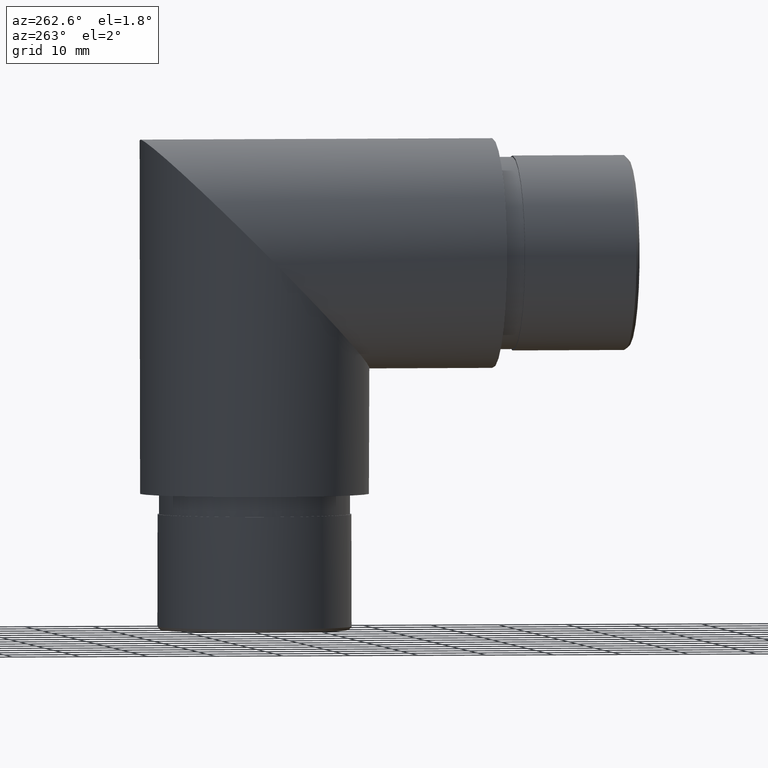
[diagram: clean part render]
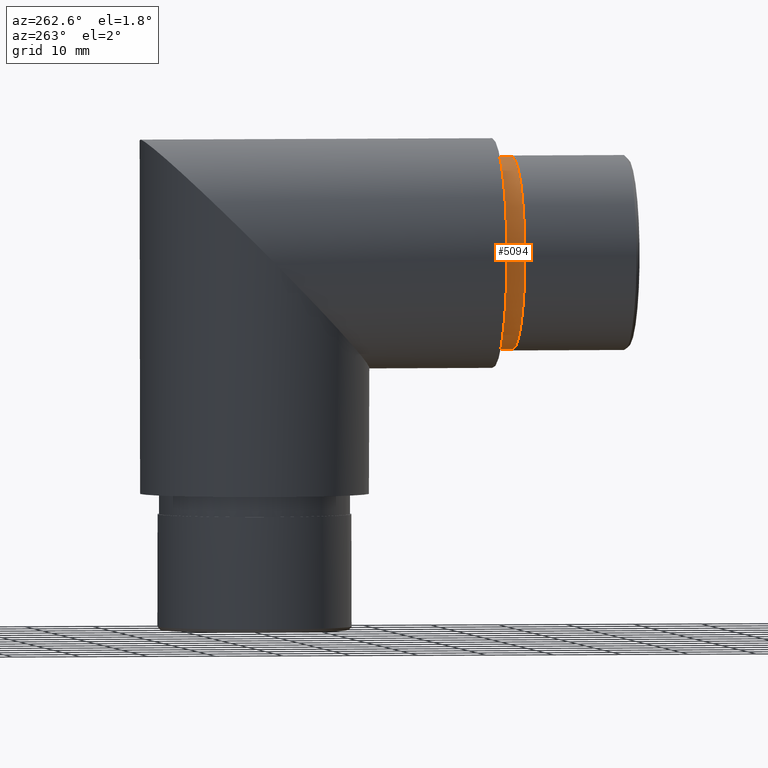
[diagram: same view with one face highlighted and labeled with its STEP entity id]
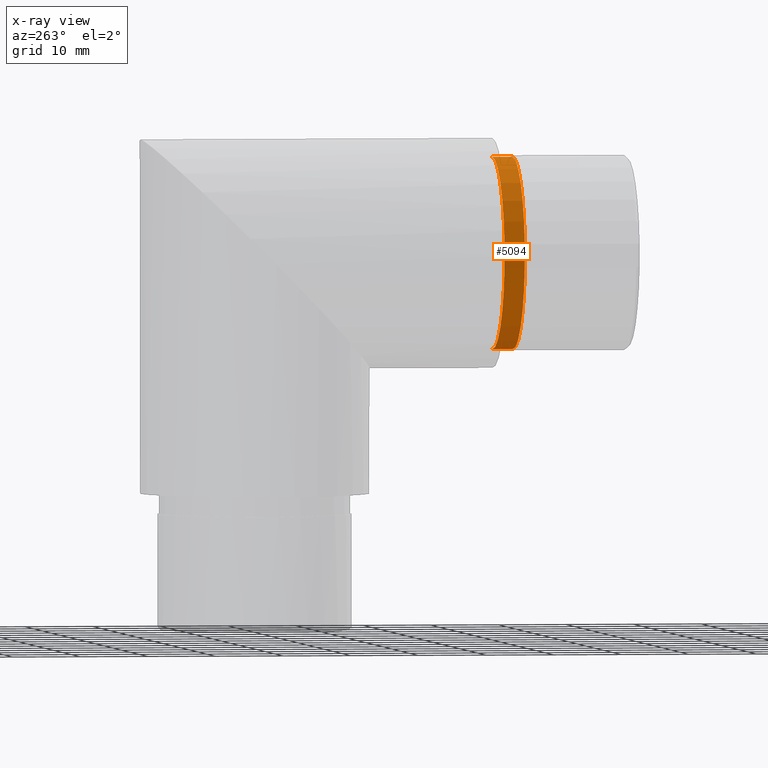
[diagram: x-ray of the same camera — body ghosted, the highlighted face saturated]
A machine part, auxiliary view. The second image highlights one B-rep face of the part: STEP entity #5094.
The next image is the same camera in x-ray: the body ghosted, the highlighted face saturated — about 0% of this face is hidden behind the body in this view.
In plain terms, the highlighted cylindrical surface (partial cylindrical patch) has radius 14.1 mm, axis along (-0, 1, -0).
Its self-contained STEP definition (entity closure, byte-faithful):
#86 = ORIENTED_EDGE ( 'NONE', *, *, #4988, .T. ) ;
#464 = DIRECTION ( 'NONE',  ( -0.000000000000000000, 1.000000000000000000, -0.000000000000000000 ) ) ;
#491 = CARTESIAN_POINT ( 'NONE',  ( 0.000000000000000000, 0.000000000000000000, 0.000000000000000000 ) ) ;
#824 = CARTESIAN_POINT ( 'NONE',  ( 0.000000000000000000, 0.000000000000000000, 14.10000000000000142 ) ) ;
#1046 = LINE ( 'NONE', #4710, #4992 ) ;
#1093 = LINE ( 'NONE', #2263, #5526 ) ;
#1507 = VERTEX_POINT ( 'NONE', #7936 ) ;
#1525 = AXIS2_PLACEMENT_3D ( 'NONE', #491, #4044, #4002 ) ;
#2186 = CARTESIAN_POINT ( 'NONE',  ( 0.000000000000000000, -3.000000000000000000, 0.000000000000000000 ) ) ;
#2263 = CARTESIAN_POINT ( 'NONE',  ( 0.000000000000000000, -3.000000000000000000, 14.10000000000000142 ) ) ;
#2319 = ORIENTED_EDGE ( 'NONE', *, *, #8913, .T. ) ;
#2963 = EDGE_CURVE ( 'NONE', #10132, #1507, #1046, .T. ) ;
#3152 = CARTESIAN_POINT ( 'NONE',  ( 0.000000000000000000, -3.000000000000000000, 14.10000000000000142 ) ) ;
#3172 = CIRCLE ( 'NONE', #7601, 14.10000000000000142 ) ;
#3692 = VERTEX_POINT ( 'NONE', #3152 ) ;
#4002 = DIRECTION ( 'NONE',  ( 0.000000000000000000, 0.000000000000000000, 1.000000000000000000 ) ) ;
#4044 = DIRECTION ( 'NONE',  ( -0.000000000000000000, -1.000000000000000000, -0.000000000000000000 ) ) ;
#4107 = DIRECTION ( 'NONE',  ( 0.000000000000000000, 0.000000000000000000, -1.000000000000000000 ) ) ;
#4710 = CARTESIAN_POINT ( 'NONE',  ( 1.726751986797768192E-15, -3.000000000000000000, -14.10000000000000142 ) ) ;
#4988 = EDGE_CURVE ( 'NONE', #3692, #12200, #1093, .T. ) ;
#4992 = VECTOR ( 'NONE', #7681, 1000.000000000000000 ) ;
#5094 = ADVANCED_FACE ( 'NONE', ( #5832 ), #5990, .T. ) ;
#5228 = EDGE_LOOP ( 'NONE', ( #6033, #6784, #86, #2319 ) ) ;
#5497 = DIRECTION ( 'NONE',  ( -0.000000000000000000, 1.000000000000000000, -0.000000000000000000 ) ) ;
#5526 = VECTOR ( 'NONE', #464, 1000.000000000000000 ) ;
#5832 = FACE_OUTER_BOUND ( 'NONE', #5228, .T. ) ;
#5990 = CYLINDRICAL_SURFACE ( 'NONE', #11931, 14.10000000000000142 ) ;
#6033 = ORIENTED_EDGE ( 'NONE', *, *, #2963, .F. ) ;
#6784 = ORIENTED_EDGE ( 'NONE', *, *, #9422, .F. ) ;
#6788 = CARTESIAN_POINT ( 'NONE',  ( 1.726751986797768192E-15, -3.000000000000000000, -14.10000000000000142 ) ) ;
#7472 = CARTESIAN_POINT ( 'NONE',  ( 0.000000000000000000, -3.000000000000000000, 0.000000000000000000 ) ) ;
#7601 = AXIS2_PLACEMENT_3D ( 'NONE', #2186, #9012, #4107 ) ;
#7681 = DIRECTION ( 'NONE',  ( -0.000000000000000000, 1.000000000000000000, -0.000000000000000000 ) ) ;
#7936 = CARTESIAN_POINT ( 'NONE',  ( 1.726751986797768192E-15, 0.000000000000000000, -14.10000000000000142 ) ) ;
#8913 = EDGE_CURVE ( 'NONE', #12200, #1507, #11296, .T. ) ;
#9012 = DIRECTION ( 'NONE',  ( 0.000000000000000000, -1.000000000000000000, 0.000000000000000000 ) ) ;
#9422 = EDGE_CURVE ( 'NONE', #3692, #10132, #3172, .T. ) ;
#10132 = VERTEX_POINT ( 'NONE', #6788 ) ;
#11296 = CIRCLE ( 'NONE', #1525, 14.10000000000000142 ) ;
#11931 = AXIS2_PLACEMENT_3D ( 'NONE', #7472, #5497, #12357 ) ;
#12200 = VERTEX_POINT ( 'NONE', #824 ) ;
#12357 = DIRECTION ( 'NONE',  ( 0.000000000000000000, 0.000000000000000000, 1.000000000000000000 ) ) ;